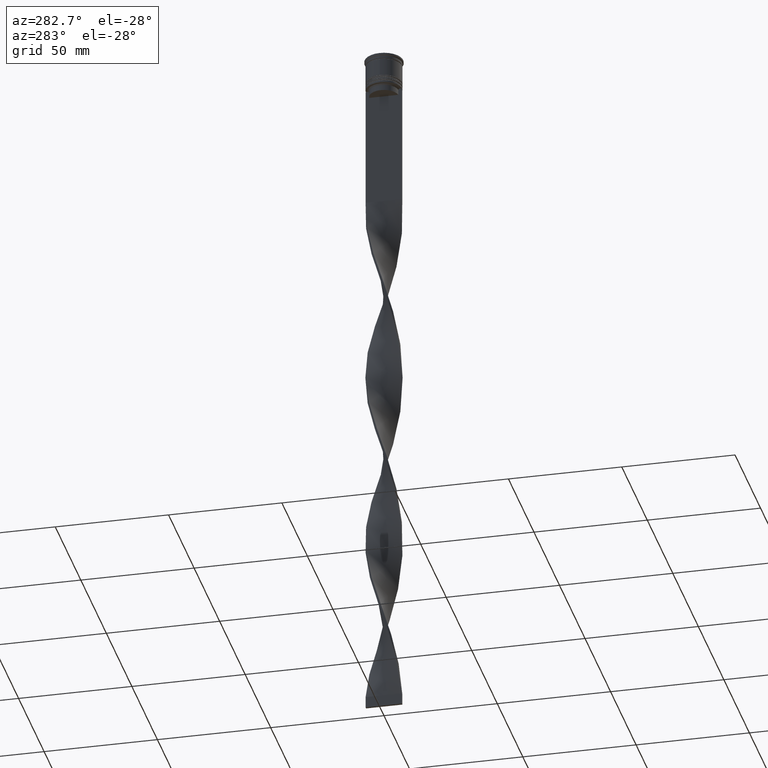
[diagram: clean part render]
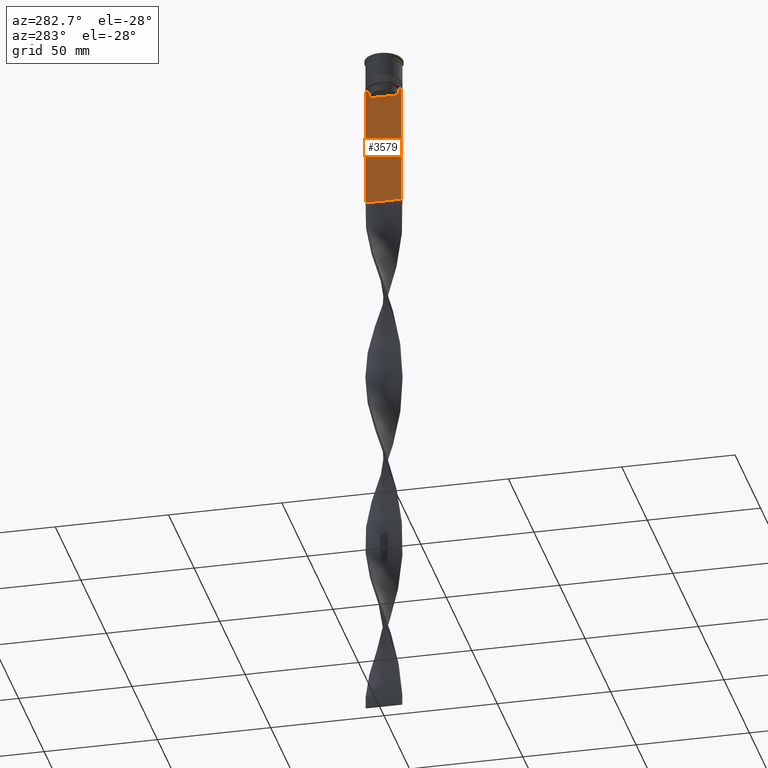
[diagram: same view with one face highlighted and labeled with its STEP entity id]
A machine part, auxiliary view. The second image highlights one B-rep face of the part: STEP entity #3579.
In plain terms, the highlighted planar face has unit normal (-1, 0, 0).
Its self-contained STEP definition (entity closure, byte-faithful):
#30 = DIRECTION ( 'NONE',  ( 0.000000000000000000, -1.000000000000000000, 0.000000000000000000 ) ) ;
#154 = VECTOR ( 'NONE', #3810, 1000.000000000000000 ) ;
#290 = ORIENTED_EDGE ( 'NONE', *, *, #551, .F. ) ;
#317 = CARTESIAN_POINT ( 'NONE',  ( -0.4999999999999998890, -6.380438856379708312, 0.000000000000000000 ) ) ;
#318 = CARTESIAN_POINT ( 'NONE',  ( -0.4999999999999998890, 6.380438856379708312, -14.50000000000000000 ) ) ;
#340 = CARTESIAN_POINT ( 'NONE',  ( -0.4999999999999998890, -8.000000000000003553, 2.031219541881394530 ) ) ;
#352 = CARTESIAN_POINT ( 'NONE',  ( -0.4999999999999998890, -8.000000000000003553, -14.00000000000000178 ) ) ;
#376 = EDGE_CURVE ( 'NONE', #3085, #2041, #2726, .T. ) ;
#390 = CARTESIAN_POINT ( 'NONE',  ( -0.4999999999999998890, 6.399999999999999467, -17.00000000000000000 ) ) ;
#551 = EDGE_CURVE ( 'NONE', #3292, #2638, #2299, .T. ) ;
#579 = DIRECTION ( 'NONE',  ( 0.000000000000000000, -1.000000000000000000, 0.000000000000000000 ) ) ;
#616 = DIRECTION ( 'NONE',  ( -1.000000000000000000, 0.000000000000000000, 0.000000000000000000 ) ) ;
#625 = VERTEX_POINT ( 'NONE', #2600 ) ;
#651 = LINE ( 'NONE', #390, #1319 ) ;
#664 = DIRECTION ( 'NONE',  ( 0.000000000000000000, -1.000000000000000000, 0.000000000000000000 ) ) ;
#756 = CARTESIAN_POINT ( 'NONE',  ( -0.4999999999999998890, -6.714736947305992132, -14.16668390685738999 ) ) ;
#833 = VERTEX_POINT ( 'NONE', #1611 ) ;
#848 = LINE ( 'NONE', #1860, #1266 ) ;
#893 = EDGE_LOOP ( 'NONE', ( #4074, #1995, #3436, #1649, #3353, #3877, #1862, #290, #1310, #2539, #1768, #3186 ) ) ;
#901 = EDGE_CURVE ( 'NONE', #2041, #3028, #651, .T. ) ;
#918 = PLANE ( 'NONE',  #3010 ) ;
#930 = VECTOR ( 'NONE', #664, 1000.000000000000000 ) ;
#970 = LINE ( 'NONE', #317, #3071 ) ;
#973 = VERTEX_POINT ( 'NONE', #1337 ) ;
#1051 = LINE ( 'NONE', #3581, #2873 ) ;
#1076 = CARTESIAN_POINT ( 'NONE',  ( -0.4999999999999998890, -6.881860213634098500, -14.00000000000000178 ) ) ;
#1184 = VECTOR ( 'NONE', #579, 1000.000000000000000 ) ;
#1202 = CARTESIAN_POINT ( 'NONE',  ( -0.4999999999999998890, 6.380438856379708312, -14.50000000000000000 ) ) ;
#1252 = EDGE_CURVE ( 'NONE', #2290, #3292, #1616, .T. ) ;
#1266 = VECTOR ( 'NONE', #2183, 1000.000000000000000 ) ;
#1310 = ORIENTED_EDGE ( 'NONE', *, *, #1252, .F. ) ;
#1319 = VECTOR ( 'NONE', #30, 1000.000000000000000 ) ;
#1337 = CARTESIAN_POINT ( 'NONE',  ( -0.4999999999999998890, 7.884161337770806632, -14.00000000000000178 ) ) ;
#1558 = CARTESIAN_POINT ( 'NONE',  ( -0.4999999999999998890, -7.884161337770806632, -14.00000000000000178 ) ) ;
#1611 = CARTESIAN_POINT ( 'NONE',  ( -0.4999999999999998890, -8.000000000000003553, -14.00000000000000178 ) ) ;
#1616 = B_SPLINE_CURVE_WITH_KNOTS ( 'NONE', 3,
 ( #2325, #3617, #756, #2012 ),
 .UNSPECIFIED., .F., .F.,
 ( 4, 4 ),
 ( 0.02996184199614749730, 0.03067452609193703841 ),
 .UNSPECIFIED. ) ;
#1649 = ORIENTED_EDGE ( 'NONE', *, *, #2110, .T. ) ;
#1718 = CARTESIAN_POINT ( 'NONE',  ( -0.4999999999999998890, 6.380438856379708312, -17.00000000000000000 ) ) ;
#1768 = ORIENTED_EDGE ( 'NONE', *, *, #901, .F. ) ;
#1816 = EDGE_CURVE ( 'NONE', #973, #3377, #2207, .T. ) ;
#1860 = CARTESIAN_POINT ( 'NONE',  ( -0.4999999999999998890, -8.000000000000003553, -14.00000000000000178 ) ) ;
#1862 = ORIENTED_EDGE ( 'NONE', *, *, #1887, .F. ) ;
#1887 = EDGE_CURVE ( 'NONE', #2638, #833, #2147, .T. ) ;
#1941 = LINE ( 'NONE', #2921, #1991 ) ;
#1991 = VECTOR ( 'NONE', #2984, 1000.000000000000000 ) ;
#1995 = ORIENTED_EDGE ( 'NONE', *, *, #1816, .F. ) ;
#2012 = CARTESIAN_POINT ( 'NONE',  ( -0.4999999999999998890, -6.881860213634098500, -14.00000000000000178 ) ) ;
#2041 = VERTEX_POINT ( 'NONE', #1718 ) ;
#2100 = CARTESIAN_POINT ( 'NONE',  ( -0.4999999999999998890, 6.881860213634098500, -14.00000000000000178 ) ) ;
#2110 = EDGE_CURVE ( 'NONE', #625, #3293, #1941, .T. ) ;
#2112 = VECTOR ( 'NONE', #2229, 1000.000000000000000 ) ;
#2139 = CARTESIAN_POINT ( 'NONE',  ( -0.4999999999999998890, 6.881860213634098500, -14.00000000000000178 ) ) ;
#2147 = LINE ( 'NONE', #3517, #930 ) ;
#2183 = DIRECTION ( 'NONE',  ( 0.000000000000000000, -1.000000000000000000, 0.000000000000000000 ) ) ;
#2207 = LINE ( 'NONE', #2554, #154 ) ;
#2210 = CARTESIAN_POINT ( 'NONE',  ( -0.4999999999999998890, -6.380438856379708312, -17.00000000000000000 ) ) ;
#2229 = DIRECTION ( 'NONE',  ( 0.000000000000000000, 0.000000000000000000, -1.000000000000000000 ) ) ;
#2239 = CARTESIAN_POINT ( 'NONE',  ( -0.4999999999999998890, -8.000000000000003553, -68.00000000000000000 ) ) ;
#2290 = VERTEX_POINT ( 'NONE', #4025 ) ;
#2299 = LINE ( 'NONE', #352, #1184 ) ;
#2325 = CARTESIAN_POINT ( 'NONE',  ( -0.4999999999999998890, -6.380438856379708312, -14.50000000000000000 ) ) ;
#2483 = DIRECTION ( 'NONE',  ( -0.000000000000000000, -0.000000000000000000, 1.000000000000000000 ) ) ;
#2488 = FACE_OUTER_BOUND ( 'NONE', #893, .T. ) ;
#2539 = ORIENTED_EDGE ( 'NONE', *, *, #2552, .F. ) ;
#2552 = EDGE_CURVE ( 'NONE', #3028, #2290, #970, .T. ) ;
#2554 = CARTESIAN_POINT ( 'NONE',  ( -0.4999999999999998890, -8.000000000000003553, -14.00000000000000178 ) ) ;
#2600 = CARTESIAN_POINT ( 'NONE',  ( -0.4999999999999998890, 7.999999999999996447, -14.00000000000000178 ) ) ;
#2638 = VERTEX_POINT ( 'NONE', #1558 ) ;
#2678 = CARTESIAN_POINT ( 'NONE',  ( -0.4999999999999998890, 7.999999999999996447, -68.00000000000000000 ) ) ;
#2726 = LINE ( 'NONE', #3120, #3655 ) ;
#2858 = VERTEX_POINT ( 'NONE', #2239 ) ;
#2873 = VECTOR ( 'NONE', #3322, 1000.000000000000000 ) ;
#2921 = CARTESIAN_POINT ( 'NONE',  ( -0.4999999999999998890, 7.999999999999996447, 2.031219541881394530 ) ) ;
#2980 = EDGE_CURVE ( 'NONE', #833, #2858, #3813, .T. ) ;
#2984 = DIRECTION ( 'NONE',  ( 0.000000000000000000, 0.000000000000000000, -1.000000000000000000 ) ) ;
#3010 = AXIS2_PLACEMENT_3D ( 'NONE', #3463, #616, #3485 ) ;
#3028 = VERTEX_POINT ( 'NONE', #2210 ) ;
#3071 = VECTOR ( 'NONE', #2483, 1000.000000000000000 ) ;
#3085 = VERTEX_POINT ( 'NONE', #318 ) ;
#3120 = CARTESIAN_POINT ( 'NONE',  ( -0.4999999999999998890, 6.380438856379708312, 0.000000000000000000 ) ) ;
#3175 = EDGE_CURVE ( 'NONE', #2858, #3293, #1051, .T. ) ;
#3186 = ORIENTED_EDGE ( 'NONE', *, *, #376, .F. ) ;
#3292 = VERTEX_POINT ( 'NONE', #1076 ) ;
#3293 = VERTEX_POINT ( 'NONE', #2678 ) ;
#3322 = DIRECTION ( 'NONE',  ( 0.000000000000000000, 1.000000000000000000, 0.000000000000000000 ) ) ;
#3353 = ORIENTED_EDGE ( 'NONE', *, *, #3175, .F. ) ;
#3377 = VERTEX_POINT ( 'NONE', #2139 ) ;
#3436 = ORIENTED_EDGE ( 'NONE', *, *, #3885, .F. ) ;
#3463 = CARTESIAN_POINT ( 'NONE',  ( -0.4999999999999998890, -8.000000000000003553, 2.031219541881394530 ) ) ;
#3485 = DIRECTION ( 'NONE',  ( 0.000000000000000000, 0.000000000000000000, 1.000000000000000000 ) ) ;
#3516 = B_SPLINE_CURVE_WITH_KNOTS ( 'NONE', 3,
 ( #2100, #3780, #3723, #1202 ),
 .UNSPECIFIED., .F., .F.,
 ( 4, 4 ),
 ( 0.01172465562756038263, 0.01243276816391822651 ),
 .UNSPECIFIED. ) ;
#3517 = CARTESIAN_POINT ( 'NONE',  ( -0.4999999999999998890, -8.000000000000003553, -14.00000000000000178 ) ) ;
#3579 = ADVANCED_FACE ( 'NONE', ( #2488 ), #918, .T. ) ;
#3581 = CARTESIAN_POINT ( 'NONE',  ( -0.4999999999999998890, -8.000000000000003553, -68.00000000000000000 ) ) ;
#3617 = CARTESIAN_POINT ( 'NONE',  ( -0.4999999999999998890, -6.547597841511246131, -14.33335192438652328 ) ) ;
#3655 = VECTOR ( 'NONE', #4086, 1000.000000000000000 ) ;
#3723 = CARTESIAN_POINT ( 'NONE',  ( -0.4999999999999998890, 6.547597841304911626, -14.33335192459222718 ) ) ;
#3780 = CARTESIAN_POINT ( 'NONE',  ( -0.4999999999999998890, 6.714736947114692711, -14.16668390704818847 ) ) ;
#3810 = DIRECTION ( 'NONE',  ( 0.000000000000000000, -1.000000000000000000, 0.000000000000000000 ) ) ;
#3813 = LINE ( 'NONE', #340, #2112 ) ;
#3877 = ORIENTED_EDGE ( 'NONE', *, *, #2980, .F. ) ;
#3885 = EDGE_CURVE ( 'NONE', #625, #973, #848, .T. ) ;
#3936 = EDGE_CURVE ( 'NONE', #3377, #3085, #3516, .T. ) ;
#4025 = CARTESIAN_POINT ( 'NONE',  ( -0.4999999999999998890, -6.380438856379708312, -14.50000000000000000 ) ) ;
#4074 = ORIENTED_EDGE ( 'NONE', *, *, #3936, .F. ) ;
#4086 = DIRECTION ( 'NONE',  ( 0.000000000000000000, 0.000000000000000000, -1.000000000000000000 ) ) ;